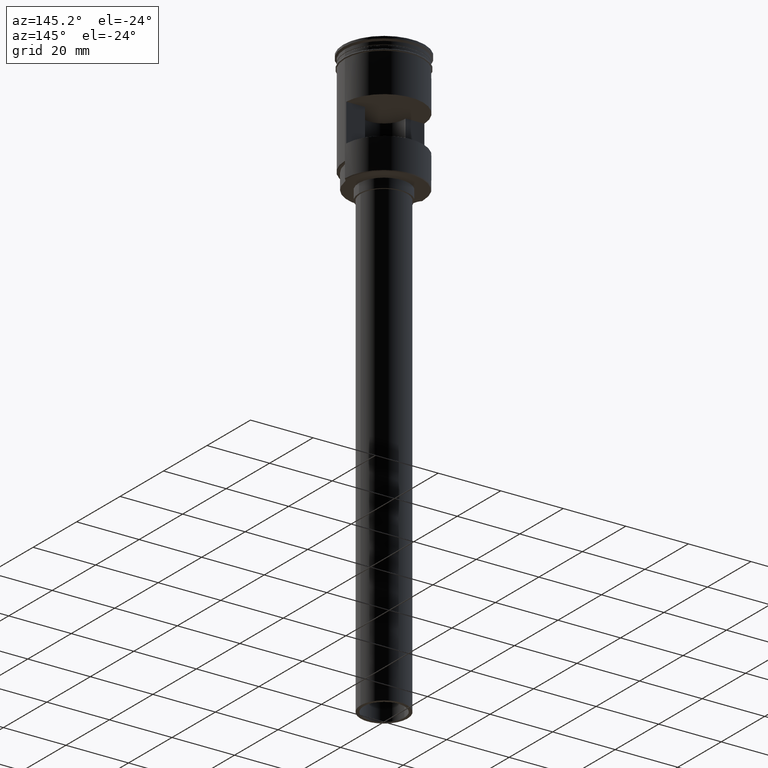
[diagram: clean part render]
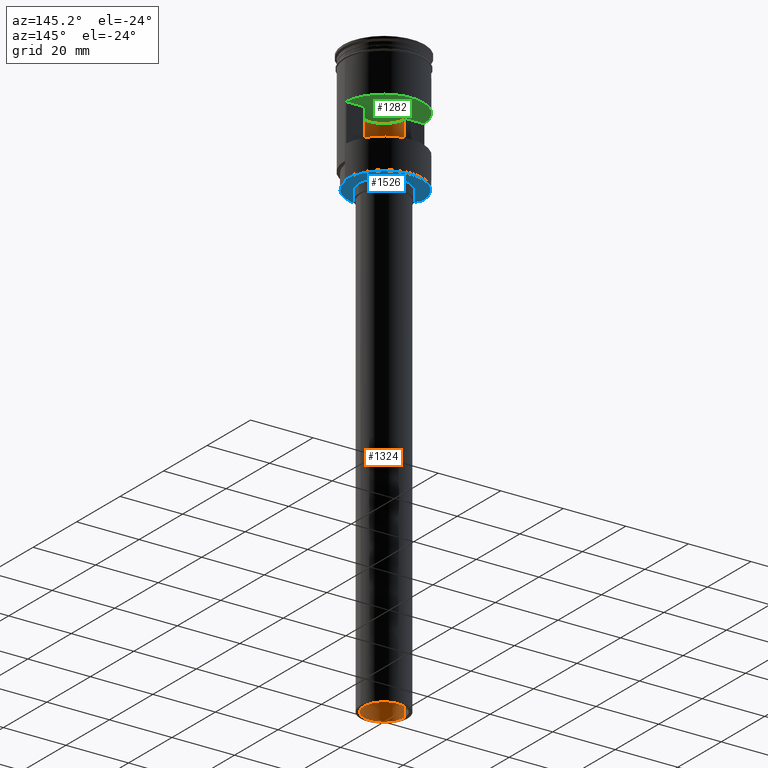
[diagram: same view with three faces highlighted in distinct colors, each labeled with its STEP entity id]
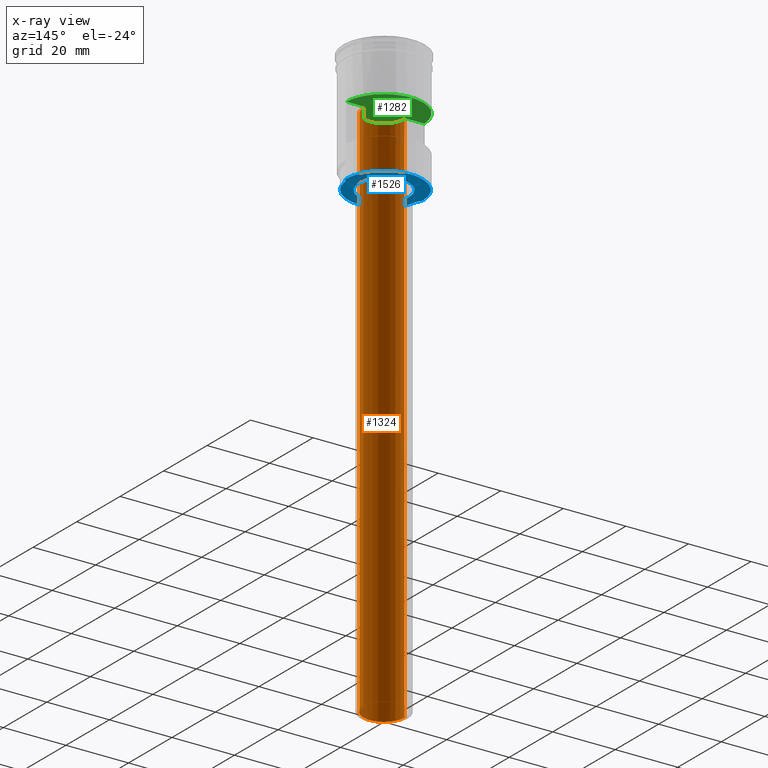
[diagram: x-ray of the same camera — body ghosted, the three highlighted faces saturated]
A machine part, auxiliary view with three faces highlighted in distinct colors.
The next image is the same camera in x-ray (body ghosted, the three faces saturated) — at least one of them is partly hidden behind the body in this view.
Their STEP definitions:

[orange] entity #1324 — the highlighted cylindrical surface (edge-blend (fillet) strip) has radius 6.5 mm, axis along (-0, -0, -1).
#82 = VERTEX_POINT ( 'NONE', #421 ) ;
#120 = AXIS2_PLACEMENT_3D ( 'NONE', #1517, #637, #522 ) ;
#158 = ORIENTED_EDGE ( 'NONE', *, *, #1387, .F. ) ;
#239 = ORIENTED_EDGE ( 'NONE', *, *, #1397, .T. ) ;
#254 = AXIS2_PLACEMENT_3D ( 'NONE', #803, #317, #796 ) ;
#298 = DIRECTION ( 'NONE',  ( 0.000000000000000000, 0.000000000000000000, -1.000000000000000000 ) ) ;
#317 = DIRECTION ( 'NONE',  ( -0.000000000000000000, 0.000000000000000000, -1.000000000000000000 ) ) ;
#378 = VERTEX_POINT ( 'NONE', #1487 ) ;
#421 = CARTESIAN_POINT ( 'NONE',  ( 6.500000000000000888, 7.960204194457794491E-16, -16.50000000000000000 ) ) ;
#422 = DIRECTION ( 'NONE',  ( -0.000000000000000000, -0.000000000000000000, -1.000000000000000000 ) ) ;
#522 = DIRECTION ( 'NONE',  ( -1.000000000000000000, 0.000000000000000000, 0.000000000000000000 ) ) ;
#607 = CARTESIAN_POINT ( 'NONE',  ( -6.500000000000000888, 0.000000000000000000, -188.5000000000000000 ) ) ;
#611 = VECTOR ( 'NONE', #1320, 1000.000000000000000 ) ;
#637 = DIRECTION ( 'NONE',  ( -0.000000000000000000, -0.000000000000000000, -1.000000000000000000 ) ) ;
#675 = CARTESIAN_POINT ( 'NONE',  ( 6.500000000000000888, 7.960204194457794491E-16, 1.884776310850211356 ) ) ;
#684 = LINE ( 'NONE', #675, #611 ) ;
#701 = EDGE_LOOP ( 'NONE', ( #1222, #1194, #239, #158 ) ) ;
#736 = VERTEX_POINT ( 'NONE', #872 ) ;
#795 = VERTEX_POINT ( 'NONE', #607 ) ;
#796 = DIRECTION ( 'NONE',  ( 1.000000000000000000, 0.000000000000000000, 0.000000000000000000 ) ) ;
#803 = CARTESIAN_POINT ( 'NONE',  ( 0.000000000000000000, 0.000000000000000000, -16.50000000000000000 ) ) ;
#840 = AXIS2_PLACEMENT_3D ( 'NONE', #1263, #298, #1285 ) ;
#872 = CARTESIAN_POINT ( 'NONE',  ( -6.500000000000000888, 0.000000000000000000, -16.50000000000000000 ) ) ;
#910 = FACE_OUTER_BOUND ( 'NONE', #701, .T. ) ;
#943 = CIRCLE ( 'NONE', #254, 6.500000000000000888 ) ;
#1016 = LINE ( 'NONE', #1532, #1546 ) ;
#1025 = EDGE_CURVE ( 'NONE', #82, #736, #943, .T. ) ;
#1033 = CYLINDRICAL_SURFACE ( 'NONE', #120, 6.500000000000000888 ) ;
#1057 = EDGE_CURVE ( 'NONE', #82, #378, #684, .T. ) ;
#1100 = CIRCLE ( 'NONE', #840, 6.500000000000000888 ) ;
#1194 = ORIENTED_EDGE ( 'NONE', *, *, #1057, .T. ) ;
#1222 = ORIENTED_EDGE ( 'NONE', *, *, #1025, .F. ) ;
#1263 = CARTESIAN_POINT ( 'NONE',  ( 0.000000000000000000, 0.000000000000000000, -188.5000000000000000 ) ) ;
#1285 = DIRECTION ( 'NONE',  ( -1.000000000000000000, 0.000000000000000000, 0.000000000000000000 ) ) ;
#1320 = DIRECTION ( 'NONE',  ( -0.000000000000000000, -0.000000000000000000, -1.000000000000000000 ) ) ;
#1324 = ADVANCED_FACE ( 'NONE', ( #910 ), #1033, .F. ) ;
#1387 = EDGE_CURVE ( 'NONE', #736, #795, #1016, .T. ) ;
#1397 = EDGE_CURVE ( 'NONE', #378, #795, #1100, .T. ) ;
#1487 = CARTESIAN_POINT ( 'NONE',  ( 6.500000000000000888, 7.960204194457794491E-16, -188.5000000000000000 ) ) ;
#1517 = CARTESIAN_POINT ( 'NONE',  ( 0.000000000000000000, 0.000000000000000000, 1.884776310850211356 ) ) ;
#1532 = CARTESIAN_POINT ( 'NONE',  ( -6.500000000000000888, 0.000000000000000000, 1.884776310850211356 ) ) ;
#1546 = VECTOR ( 'NONE', #422, 1000.000000000000000 ) ;

[blue] entity #1526 — the highlighted planar face has unit normal (0, 0, -1).
#1 = EDGE_LOOP ( 'NONE', ( #616, #692, #624, #1465, #1375, #364 ) ) ;
#6 = DIRECTION ( 'NONE',  ( -1.000000000000000000, 0.000000000000000000, 0.000000000000000000 ) ) ;
#13 = CARTESIAN_POINT ( 'NONE',  ( -14.35809999999999498, -2.355305583146269477, -38.50000000000000000 ) ) ;
#48 = CARTESIAN_POINT ( 'NONE',  ( 12.29877269673719198, -0.1737531409537070581, -38.50000000000000000 ) ) ;
#71 = CIRCLE ( 'NONE', #1573, 11.54999999999999716 ) ;
#77 = VERTEX_POINT ( 'NONE', #48 ) ;
#92 = VERTEX_POINT ( 'NONE', #1179 ) ;
#98 = AXIS2_PLACEMENT_3D ( 'NONE', #1550, #1426, #440 ) ;
#113 = DIRECTION ( 'NONE',  ( -1.000000000000000000, 0.000000000000000000, 0.000000000000000000 ) ) ;
#179 = EDGE_CURVE ( 'NONE', #436, #77, #1597, .T. ) ;
#180 = PLANE ( 'NONE',  #687 ) ;
#208 = CARTESIAN_POINT ( 'NONE',  ( -12.29999999999997762, 1.518562030942716389E-15, -38.50000000000000000 ) ) ;
#230 = CARTESIAN_POINT ( 'NONE',  ( -12.29877269673719198, -0.1737531409537070581, -38.50000000000000000 ) ) ;
#306 = DIRECTION ( 'NONE',  ( -1.000000000000000000, 0.000000000000000000, 0.000000000000000000 ) ) ;
#314 = CARTESIAN_POINT ( 'NONE',  ( -7.179049999999997489, -1.177652791573134738, -38.50000000000000000 ) ) ;
#328 = DIRECTION ( 'NONE',  ( 0.000000000000000000, 0.000000000000000000, -1.000000000000000000 ) ) ;
#364 = ORIENTED_EDGE ( 'NONE', *, *, #1264, .T. ) ;
#390 = EDGE_CURVE ( 'NONE', #1245, #1314, #941, .T. ) ;
#391 = DIRECTION ( 'NONE',  ( -1.000000000000000000, 0.000000000000000000, 0.000000000000000000 ) ) ;
#412 = VERTEX_POINT ( 'NONE', #974 ) ;
#429 = FACE_BOUND ( 'NONE', #990, .T. ) ;
#436 = VERTEX_POINT ( 'NONE', #734 ) ;
#440 = DIRECTION ( 'NONE',  ( -1.000000000000000000, 0.000000000000000000, 0.000000000000000000 ) ) ;
#468 = DIRECTION ( 'NONE',  ( 0.000000000000000000, 0.000000000000000000, -1.000000000000000000 ) ) ;
#486 = AXIS2_PLACEMENT_3D ( 'NONE', #697, #468, #590 ) ;
#545 = CARTESIAN_POINT ( 'NONE',  ( 12.29999999999997762, 0.000000000000000000, -38.50000000000000000 ) ) ;
#590 = DIRECTION ( 'NONE',  ( -1.000000000000000000, 0.000000000000000000, 0.000000000000000000 ) ) ;
#597 = DIRECTION ( 'NONE',  ( 0.000000000000000000, 0.000000000000000000, -1.000000000000000000 ) ) ;
#600 = DIRECTION ( 'NONE',  ( 0.000000000000000000, 0.000000000000000000, -1.000000000000000000 ) ) ;
#616 = ORIENTED_EDGE ( 'NONE', *, *, #390, .F. ) ;
#624 = ORIENTED_EDGE ( 'NONE', *, *, #724, .T. ) ;
#644 = ORIENTED_EDGE ( 'NONE', *, *, #1545, .F. ) ;
#687 = AXIS2_PLACEMENT_3D ( 'NONE', #314, #927, #1190 ) ;
#692 = ORIENTED_EDGE ( 'NONE', *, *, #1565, .T. ) ;
#697 = CARTESIAN_POINT ( 'NONE',  ( 14.35809999999999498, -2.355305583146269477, -38.50000000000000000 ) ) ;
#724 = EDGE_CURVE ( 'NONE', #1147, #1431, #968, .T. ) ;
#726 = CARTESIAN_POINT ( 'NONE',  ( 0.000000000000000000, 0.000000000000000000, -38.50000000000000000 ) ) ;
#734 = CARTESIAN_POINT ( 'NONE',  ( 11.39766701030927543, -1.869675566002708900, -38.50000000000000000 ) ) ;
#766 = EDGE_CURVE ( 'NONE', #1431, #77, #1490, .T. ) ;
#810 = AXIS2_PLACEMENT_3D ( 'NONE', #1438, #328, #819 ) ;
#819 = DIRECTION ( 'NONE',  ( -1.000000000000000000, 0.000000000000000000, 0.000000000000000000 ) ) ;
#837 = CARTESIAN_POINT ( 'NONE',  ( 0.000000000000000000, 0.000000000000000000, -38.50000000000000000 ) ) ;
#868 = CIRCLE ( 'NONE', #98, 12.29999999999997762 ) ;
#927 = DIRECTION ( 'NONE',  ( 0.000000000000000000, 0.000000000000000000, -1.000000000000000000 ) ) ;
#941 = CIRCLE ( 'NONE', #1592, 2.999999999999999112 ) ;
#942 = DIRECTION ( 'NONE',  ( 0.000000000000000000, 0.000000000000000000, -1.000000000000000000 ) ) ;
#968 = CIRCLE ( 'NONE', #810, 12.29999999999997762 ) ;
#974 = CARTESIAN_POINT ( 'NONE',  ( 8.000000000000000000, 0.000000000000000000, -38.50000000000000000 ) ) ;
#978 = CARTESIAN_POINT ( 'NONE',  ( -11.39766701030927543, -1.869675566002713563, -38.50000000000000000 ) ) ;
#990 = EDGE_LOOP ( 'NONE', ( #1009, #644 ) ) ;
#1009 = ORIENTED_EDGE ( 'NONE', *, *, #1197, .F. ) ;
#1109 = DIRECTION ( 'NONE',  ( 0.000000000000000000, 0.000000000000000000, -1.000000000000000000 ) ) ;
#1132 = AXIS2_PLACEMENT_3D ( 'NONE', #1419, #942, #306 ) ;
#1147 = VERTEX_POINT ( 'NONE', #208 ) ;
#1154 = CIRCLE ( 'NONE', #1366, 8.000000000000000000 ) ;
#1179 = CARTESIAN_POINT ( 'NONE',  ( -8.000000000000000000, 9.797174393178825657E-16, -38.50000000000000000 ) ) ;
#1190 = DIRECTION ( 'NONE',  ( -1.000000000000000000, 0.000000000000000000, -0.000000000000000000 ) ) ;
#1197 = EDGE_CURVE ( 'NONE', #412, #92, #1154, .T. ) ;
#1234 = CIRCLE ( 'NONE', #1132, 8.000000000000000000 ) ;
#1245 = VERTEX_POINT ( 'NONE', #230 ) ;
#1264 = EDGE_CURVE ( 'NONE', #436, #1314, #71, .T. ) ;
#1314 = VERTEX_POINT ( 'NONE', #978 ) ;
#1366 = AXIS2_PLACEMENT_3D ( 'NONE', #837, #1109, #6 ) ;
#1375 = ORIENTED_EDGE ( 'NONE', *, *, #179, .F. ) ;
#1419 = CARTESIAN_POINT ( 'NONE',  ( 0.000000000000000000, 0.000000000000000000, -38.50000000000000000 ) ) ;
#1426 = DIRECTION ( 'NONE',  ( 0.000000000000000000, 0.000000000000000000, -1.000000000000000000 ) ) ;
#1431 = VERTEX_POINT ( 'NONE', #545 ) ;
#1438 = CARTESIAN_POINT ( 'NONE',  ( 0.000000000000000000, 0.000000000000000000, -38.50000000000000000 ) ) ;
#1441 = AXIS2_PLACEMENT_3D ( 'NONE', #726, #600, #113 ) ;
#1459 = CARTESIAN_POINT ( 'NONE',  ( 0.000000000000000000, 0.000000000000000000, -38.50000000000000000 ) ) ;
#1465 = ORIENTED_EDGE ( 'NONE', *, *, #766, .T. ) ;
#1490 = CIRCLE ( 'NONE', #1441, 12.29999999999997762 ) ;
#1503 = DIRECTION ( 'NONE',  ( 0.000000000000000000, 0.000000000000000000, -1.000000000000000000 ) ) ;
#1526 = ADVANCED_FACE ( 'NONE', ( #429, #1575 ), #180, .T. ) ;
#1545 = EDGE_CURVE ( 'NONE', #92, #412, #1234, .T. ) ;
#1550 = CARTESIAN_POINT ( 'NONE',  ( 0.000000000000000000, 0.000000000000000000, -38.50000000000000000 ) ) ;
#1565 = EDGE_CURVE ( 'NONE', #1245, #1147, #868, .T. ) ;
#1573 = AXIS2_PLACEMENT_3D ( 'NONE', #1459, #597, #1587 ) ;
#1575 = FACE_OUTER_BOUND ( 'NONE', #1, .T. ) ;
#1587 = DIRECTION ( 'NONE',  ( -1.000000000000000000, 0.000000000000000000, 0.000000000000000000 ) ) ;
#1592 = AXIS2_PLACEMENT_3D ( 'NONE', #13, #1503, #391 ) ;
#1597 = CIRCLE ( 'NONE', #486, 2.999999999999997335 ) ;

[green] entity #1282 — the highlighted planar face has unit normal (0, -0, 1).
#39 = EDGE_CURVE ( 'NONE', #736, #839, #887, .T. ) ;
#40 = DIRECTION ( 'NONE',  ( -0.000000000000000000, 0.000000000000000000, -1.000000000000000000 ) ) ;
#82 = VERTEX_POINT ( 'NONE', #421 ) ;
#105 = CARTESIAN_POINT ( 'NONE',  ( 12.48559169603106689, 0.6000000000000003109, -16.50000000000000000 ) ) ;
#110 = ORIENTED_EDGE ( 'NONE', *, *, #168, .F. ) ;
#117 = CIRCLE ( 'NONE', #1331, 12.49999999999999645 ) ;
#168 = EDGE_CURVE ( 'NONE', #400, #839, #331, .T. ) ;
#212 = CARTESIAN_POINT ( 'NONE',  ( -13.00000000000000178, 0.6000000000000003109, -16.50000000000000000 ) ) ;
#224 = AXIS2_PLACEMENT_3D ( 'NONE', #247, #623, #1486 ) ;
#240 = CARTESIAN_POINT ( 'NONE',  ( -6.472248450113763596, 0.6000000000000004219, -16.50000000000000000 ) ) ;
#247 = CARTESIAN_POINT ( 'NONE',  ( 0.000000000000000000, 0.000000000000000000, -16.50000000000000000 ) ) ;
#254 = AXIS2_PLACEMENT_3D ( 'NONE', #803, #317, #796 ) ;
#261 = CARTESIAN_POINT ( 'NONE',  ( -12.48559169603106689, 0.6000000000000003109, -16.50000000000000000 ) ) ;
#263 = EDGE_LOOP ( 'NONE', ( #688, #1481, #876, #1422, #110, #938 ) ) ;
#303 = DIRECTION ( 'NONE',  ( 1.000000000000000000, 0.000000000000000000, 0.000000000000000000 ) ) ;
#317 = DIRECTION ( 'NONE',  ( -0.000000000000000000, 0.000000000000000000, -1.000000000000000000 ) ) ;
#320 = DIRECTION ( 'NONE',  ( 1.000000000000000000, -0.000000000000000000, -0.000000000000000000 ) ) ;
#331 = LINE ( 'NONE', #212, #563 ) ;
#346 = EDGE_CURVE ( 'NONE', #361, #1186, #866, .T. ) ;
#356 = AXIS2_PLACEMENT_3D ( 'NONE', #776, #40, #1296 ) ;
#361 = VERTEX_POINT ( 'NONE', #1093 ) ;
#400 = VERTEX_POINT ( 'NONE', #261 ) ;
#421 = CARTESIAN_POINT ( 'NONE',  ( 6.500000000000000888, 7.960204194457794491E-16, -16.50000000000000000 ) ) ;
#563 = VECTOR ( 'NONE', #320, 1000.000000000000000 ) ;
#587 = AXIS2_PLACEMENT_3D ( 'NONE', #1345, #723, #729 ) ;
#598 = EDGE_CURVE ( 'NONE', #400, #1186, #117, .T. ) ;
#615 = PLANE ( 'NONE',  #587 ) ;
#623 = DIRECTION ( 'NONE',  ( -0.000000000000000000, 0.000000000000000000, -1.000000000000000000 ) ) ;
#688 = ORIENTED_EDGE ( 'NONE', *, *, #346, .F. ) ;
#723 = DIRECTION ( 'NONE',  ( 0.000000000000000000, -0.000000000000000000, 1.000000000000000000 ) ) ;
#729 = DIRECTION ( 'NONE',  ( 1.000000000000000000, 0.000000000000000000, -0.000000000000000000 ) ) ;
#736 = VERTEX_POINT ( 'NONE', #872 ) ;
#756 = CARTESIAN_POINT ( 'NONE',  ( -13.00000000000000178, 0.6000000000000003109, -16.50000000000000000 ) ) ;
#776 = CARTESIAN_POINT ( 'NONE',  ( 0.000000000000000000, 0.000000000000000000, -16.50000000000000000 ) ) ;
#796 = DIRECTION ( 'NONE',  ( 1.000000000000000000, 0.000000000000000000, 0.000000000000000000 ) ) ;
#803 = CARTESIAN_POINT ( 'NONE',  ( 0.000000000000000000, 0.000000000000000000, -16.50000000000000000 ) ) ;
#832 = EDGE_CURVE ( 'NONE', #361, #82, #1098, .T. ) ;
#839 = VERTEX_POINT ( 'NONE', #240 ) ;
#846 = FACE_OUTER_BOUND ( 'NONE', #263, .T. ) ;
#849 = DIRECTION ( 'NONE',  ( 1.000000000000000000, -0.000000000000000000, -0.000000000000000000 ) ) ;
#866 = LINE ( 'NONE', #756, #1072 ) ;
#872 = CARTESIAN_POINT ( 'NONE',  ( -6.500000000000000888, 0.000000000000000000, -16.50000000000000000 ) ) ;
#876 = ORIENTED_EDGE ( 'NONE', *, *, #1025, .T. ) ;
#887 = CIRCLE ( 'NONE', #356, 6.500000000000000888 ) ;
#938 = ORIENTED_EDGE ( 'NONE', *, *, #598, .T. ) ;
#943 = CIRCLE ( 'NONE', #254, 6.500000000000000888 ) ;
#1025 = EDGE_CURVE ( 'NONE', #82, #736, #943, .T. ) ;
#1072 = VECTOR ( 'NONE', #849, 1000.000000000000000 ) ;
#1093 = CARTESIAN_POINT ( 'NONE',  ( 6.472248450113761820, 0.6000000000000003109, -16.50000000000000000 ) ) ;
#1098 = CIRCLE ( 'NONE', #224, 6.500000000000000888 ) ;
#1166 = DIRECTION ( 'NONE',  ( -0.000000000000000000, 0.000000000000000000, -1.000000000000000000 ) ) ;
#1186 = VERTEX_POINT ( 'NONE', #105 ) ;
#1282 = ADVANCED_FACE ( 'NONE', ( #846 ), #615, .F. ) ;
#1296 = DIRECTION ( 'NONE',  ( 1.000000000000000000, 0.000000000000000000, 0.000000000000000000 ) ) ;
#1331 = AXIS2_PLACEMENT_3D ( 'NONE', #1415, #1166, #303 ) ;
#1345 = CARTESIAN_POINT ( 'NONE',  ( -13.00000000000000178, 0.6000000000000003109, -16.50000000000000000 ) ) ;
#1415 = CARTESIAN_POINT ( 'NONE',  ( 0.000000000000000000, 0.000000000000000000, -16.50000000000000000 ) ) ;
#1422 = ORIENTED_EDGE ( 'NONE', *, *, #39, .T. ) ;
#1481 = ORIENTED_EDGE ( 'NONE', *, *, #832, .T. ) ;
#1486 = DIRECTION ( 'NONE',  ( 1.000000000000000000, 0.000000000000000000, 0.000000000000000000 ) ) ;